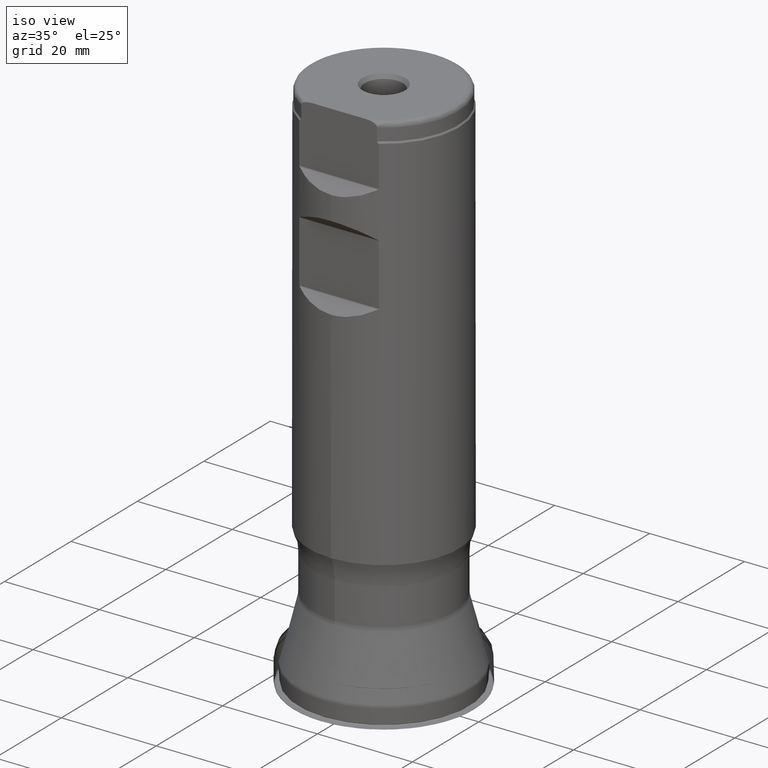
[diagram: clean part render]
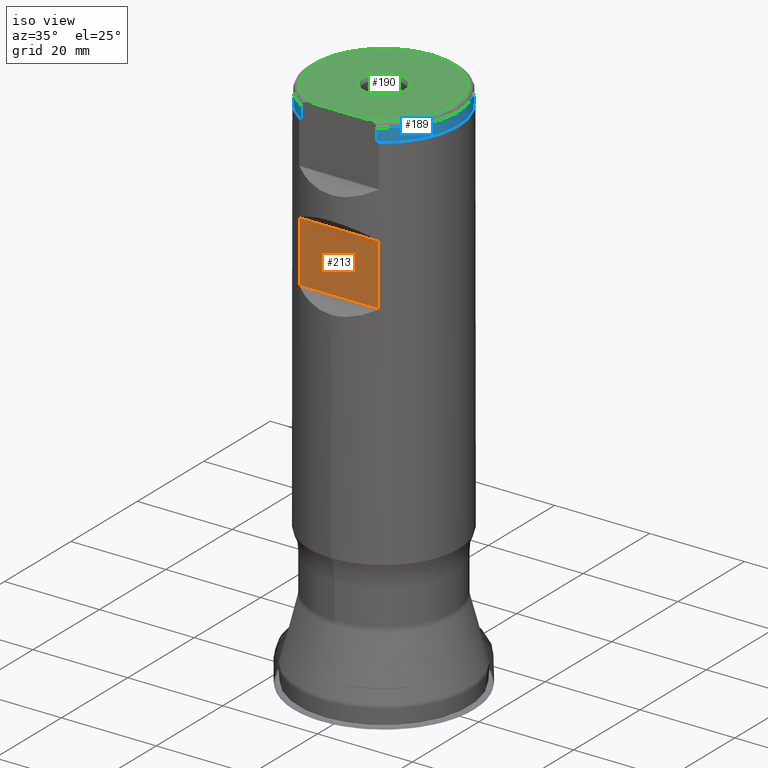
[diagram: same view with three faces highlighted in distinct colors, each labeled with its STEP entity id]
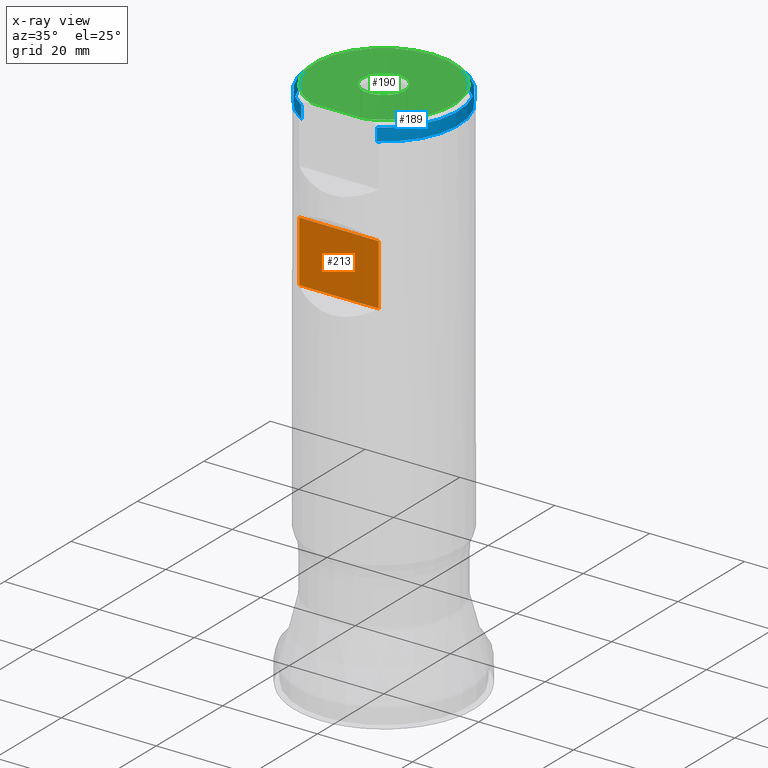
[diagram: x-ray of the same camera — body ghosted, the three highlighted faces saturated]
A machine part, iso view with three faces highlighted in distinct colors.
The next image is the same camera in x-ray (body ghosted, the three faces saturated) — at least one of them is partly hidden behind the body in this view.
Their STEP definitions:

[orange] entity #213 — the highlighted planar face has unit normal (0, -1, 0).
#167=PLANE('',#861);
#183=FACE_OUTER_BOUND('',#413,.T.);
#213=ADVANCED_FACE('',(#183),#167,.T.);
#413=EDGE_LOOP('',(#580,#581,#582,#583));
#459=LINE('',#1312,#478);
#460=LINE('',#1344,#479);
#469=LINE('',#1482,#488);
#470=LINE('',#1483,#489);
#478=VECTOR('',#890,1.);
#479=VECTOR('',#893,1.);
#488=VECTOR('',#998,1.);
#489=VECTOR('',#999,1.);
#580=ORIENTED_EDGE('',*,*,#740,.T.);
#581=ORIENTED_EDGE('',*,*,#703,.F.);
#582=ORIENTED_EDGE('',*,*,#741,.T.);
#583=ORIENTED_EDGE('',*,*,#699,.F.);
#637=VERTEX_POINT('',#1295);
#639=VERTEX_POINT('',#1311);
#640=VERTEX_POINT('',#1313);
#643=VERTEX_POINT('',#1343);
#699=EDGE_CURVE('',#639,#640,#459,.T.);
#703=EDGE_CURVE('',#643,#637,#460,.T.);
#740=EDGE_CURVE('',#639,#637,#469,.T.);
#741=EDGE_CURVE('',#643,#640,#470,.T.);
#861=AXIS2_PLACEMENT_3D('',#1484,#1000,#1001);
#890=DIRECTION('',(0.,-1.17145536458252E-15,-1.));
#893=DIRECTION('',(0.,1.17145536458252E-15,1.));
#998=DIRECTION('',(-1.,1.37230767120917E-30,1.17145536458252E-15));
#999=DIRECTION('',(1.,-1.37230767120917E-30,-1.17145536458252E-15));
#1000=DIRECTION('',(0.,-1.,1.17145536458252E-15));
#1001=DIRECTION('',(1.17267306976032E-15,1.17093834628434E-15,1.));
#1295=CARTESIAN_POINT('',(-8.37291264972948,-13.4873999999999,91.7570609312881));
#1311=CARTESIAN_POINT('',(8.37291264972948,-13.4873999999999,91.7570609312881));
#1312=CARTESIAN_POINT('',(8.37291264972948,-13.4874,1.57998870842703E-14));
#1313=CARTESIAN_POINT('',(8.37291264972948,-13.4873999999999,78.8991890687119));
#1343=CARTESIAN_POINT('',(-8.37291264972948,-13.4873999999999,78.8991890687119));
#1344=CARTESIAN_POINT('',(-8.37291264972948,-13.4874,1.57998870842703E-14));
#1482=CARTESIAN_POINT('',(-17.5,-13.4873999999999,91.7570609312881));
#1483=CARTESIAN_POINT('',(-17.5,-13.4873999999999,78.8991890687119));
#1484=CARTESIAN_POINT('',(-17.5,-13.4873999999999,91.881325));

[blue] entity #189 — the highlighted cylindrical surface (partial cylindrical patch) has radius 15.675 mm, axis along (0, 0, 1).
#177=FACE_OUTER_BOUND('',#373,.T.);
#189=ADVANCED_FACE('',(#177),#239,.T.);
#239=CYLINDRICAL_SURFACE('',#820,15.675);
#248=CIRCLE('',#817,15.675);
#249=CIRCLE('',#819,15.675);
#373=EDGE_LOOP('',(#519,#520,#521,#522));
#463=LINE('',#1399,#482);
#464=LINE('',#1400,#483);
#482=VECTOR('',#910,1.);
#483=VECTOR('',#911,1.);
#519=ORIENTED_EDGE('',*,*,#714,.T.);
#520=ORIENTED_EDGE('',*,*,#715,.T.);
#521=ORIENTED_EDGE('',*,*,#712,.T.);
#522=ORIENTED_EDGE('',*,*,#716,.T.);
#651=VERTEX_POINT('',#1388);
#652=VERTEX_POINT('',#1390);
#653=VERTEX_POINT('',#1397);
#654=VERTEX_POINT('',#1398);
#712=EDGE_CURVE('',#652,#651,#248,.T.);
#714=EDGE_CURVE('',#653,#654,#249,.T.);
#715=EDGE_CURVE('',#654,#652,#463,.T.);
#716=EDGE_CURVE('',#651,#653,#464,.T.);
#817=AXIS2_PLACEMENT_3D('',#1389,#904,#905);
#819=AXIS2_PLACEMENT_3D('',#1396,#908,#909);
#820=AXIS2_PLACEMENT_3D('',#1401,#912,#913);
#904=DIRECTION('',(0.,1.17145536458252E-15,1.));
#905=DIRECTION('',(0.,-1.,8.85345314693107E-16));
#908=DIRECTION('',(0.,-1.17145536458252E-15,-1.));
#909=DIRECTION('',(0.,-1.,8.85345314693107E-16));
#910=DIRECTION('',(0.,-1.17145536458252E-15,-1.));
#911=DIRECTION('',(0.,1.17145536458252E-15,1.));
#912=DIRECTION('',(0.,1.17145536458252E-15,1.));
#913=DIRECTION('',(0.,-1.,1.17145536458252E-15));
#1388=CARTESIAN_POINT('',(-7.98721893026603,-13.4873999999999,110.646410161514));
#1389=CARTESIAN_POINT('',(0.,1.29617330755504E-13,110.646410161514));
#1390=CARTESIAN_POINT('',(7.98721893026603,-13.4873999999999,110.646410161514));
#1396=CARTESIAN_POINT('',(0.,1.327258928072E-13,113.3));
#1397=CARTESIAN_POINT('',(-7.9872189302887,-13.4873999999999,113.299999999989));
#1398=CARTESIAN_POINT('',(7.98721893026603,-13.4873999999999,113.3));
#1399=CARTESIAN_POINT('',(7.98721893026603,-13.4874,1.57998870842703E-14));
#1400=CARTESIAN_POINT('',(-7.98721893026603,-13.4874,1.57998870842703E-14));
#1401=CARTESIAN_POINT('',(0.,0.,0.));

[green] entity #190 — the highlighted planar face has unit normal (0, 0, 1).
#161=PLANE('',#823);
#190=ADVANCED_FACE('',(#291,#292),#161,.T.);
#250=CIRCLE('',#821,4.5);
#251=CIRCLE('',#822,14.675);
#291=FACE_BOUND('',#374,.T.);
#292=FACE_BOUND('',#375,.T.);
#374=EDGE_LOOP('',(#523));
#375=EDGE_LOOP('',(#524,#525));
#465=LINE('',#1407,#484);
#484=VECTOR('',#918,1.);
#523=ORIENTED_EDGE('',*,*,#717,.T.);
#524=ORIENTED_EDGE('',*,*,#718,.T.);
#525=ORIENTED_EDGE('',*,*,#719,.T.);
#655=VERTEX_POINT('',#1403);
#656=VERTEX_POINT('',#1405);
#657=VERTEX_POINT('',#1406);
#717=EDGE_CURVE('',#655,#655,#250,.T.);
#718=EDGE_CURVE('',#656,#657,#251,.T.);
#719=EDGE_CURVE('',#657,#656,#465,.T.);
#821=AXIS2_PLACEMENT_3D('',#1402,#914,#915);
#822=AXIS2_PLACEMENT_3D('',#1404,#916,#917);
#823=AXIS2_PLACEMENT_3D('',#1408,#919,#920);
#914=DIRECTION('',(0.,-1.17145536458252E-15,-1.));
#915=DIRECTION('',(0.,-1.,0.));
#916=DIRECTION('',(0.,1.17145536458252E-15,1.));
#917=DIRECTION('',(0.,-1.,9.45675489459248E-16));
#918=DIRECTION('',(1.,-1.37230767120917E-30,-1.17145536458252E-15));
#919=DIRECTION('',(0.,1.17145536458252E-15,1.));
#920=DIRECTION('',(0.,-1.,1.16573417585641E-15));
#1402=CARTESIAN_POINT('',(0.,1.33897348171782E-13,114.3));
#1403=CARTESIAN_POINT('',(0.,-4.49999999999987,114.3));
#1404=CARTESIAN_POINT('',(0.,1.33897348171782E-13,114.3));
#1405=CARTESIAN_POINT('',(5.78322282468844,-13.4873999999999,114.3));
#1406=CARTESIAN_POINT('',(-5.78322282468865,-13.4873999999999,114.3));
#1407=CARTESIAN_POINT('',(-17.5,-13.4873999999999,114.3));
#1408=CARTESIAN_POINT('',(0.,1.33897348171782E-13,114.3));